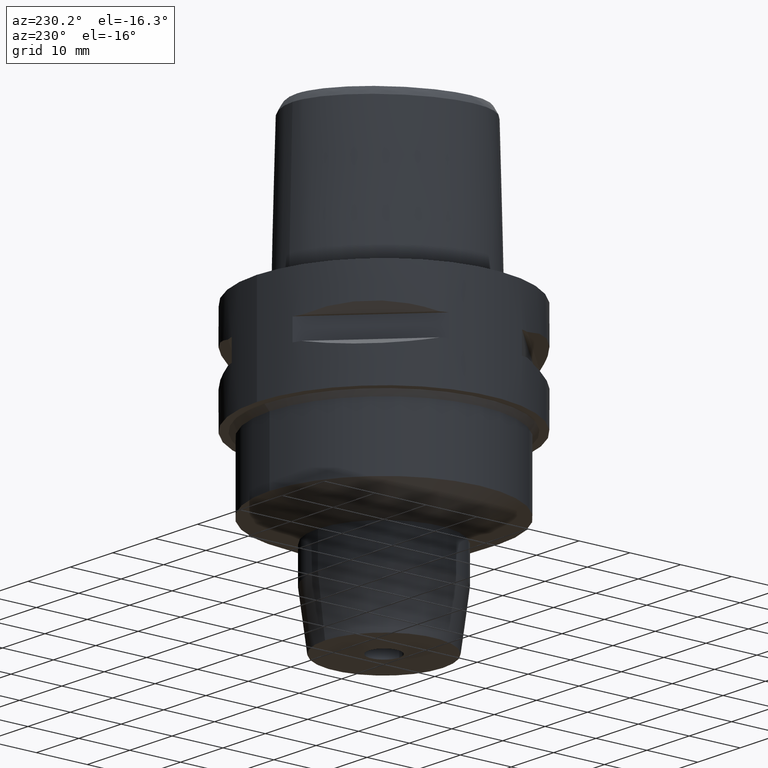
[diagram: clean part render]
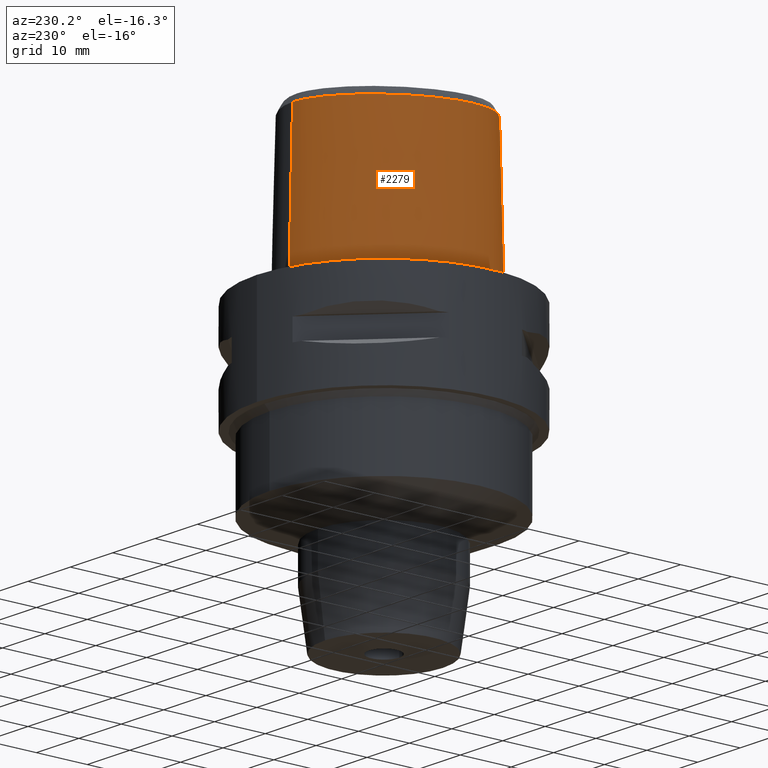
[diagram: same view with one face highlighted and labeled with its STEP entity id]
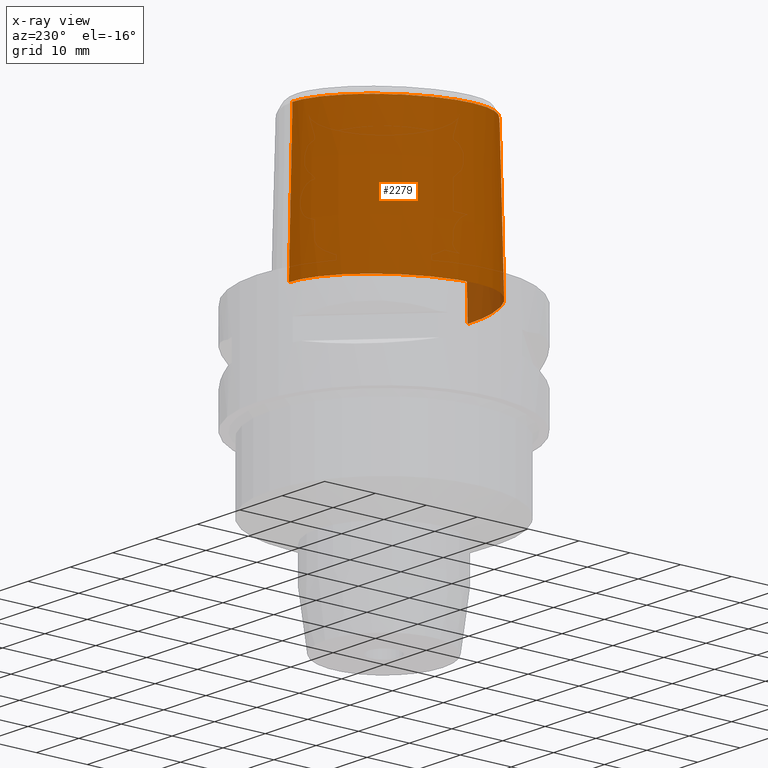
[diagram: x-ray of the same camera — body ghosted, the highlighted face saturated]
A machine part, auxiliary view. The second image highlights one B-rep face of the part: STEP entity #2279.
The next image is the same camera in x-ray: the body ghosted, the highlighted face saturated — about 3% of this face is hidden behind the body in this view.
In plain terms, the highlighted face is a freeform B-spline surface patch.
Its self-contained STEP definition (entity closure, byte-faithful):
#195=CARTESIAN_POINT('',(-3.168920966623E0,-1.555911077539E1,2.852071192347E1));
#196=CARTESIAN_POINT('',(-3.837736182049E0,-1.548115786437E1,2.852068246566E1));
#197=CARTESIAN_POINT('',(-5.103782119425E0,-1.528209457027E1,2.852072510672E1));
#198=CARTESIAN_POINT('',(-6.760079202981E0,-1.489624739786E1,2.852071503998E1));
#199=CARTESIAN_POINT('',(-8.188437593360E0,-1.445768856473E1,2.852072783918E1));
#200=CARTESIAN_POINT('',(-9.462766666758E0,-1.397001735599E1,2.852070892690E1));
#201=CARTESIAN_POINT('',(-1.062951577327E1,-1.342631881633E1,2.852072283825E1));
#202=CARTESIAN_POINT('',(-1.170079661428E1,-1.282576930629E1,2.852071572594E1));
#203=CARTESIAN_POINT('',(-1.269044503179E1,-1.215933184955E1,2.852072036219E1));
#204=CARTESIAN_POINT('',(-1.356730027027E1,-1.144675639671E1,2.852072196700E1));
#205=CARTESIAN_POINT('',(-1.430922534506E1,-1.071867031655E1,2.852072393245E1));
#206=CARTESIAN_POINT('',(-1.493021945778E1,-9.980979596831E0,2.852069071567E1));
#207=CARTESIAN_POINT('',(-1.544743411559E1,-9.230092316297E0,2.852073173178E1));
#208=CARTESIAN_POINT('',(-1.587960461388E1,-8.446092640123E0,2.852072589593E1));
#209=CARTESIAN_POINT('',(-1.624668414723E1,-7.591406008451E0,2.852070996467E1));
#210=CARTESIAN_POINT('',(-1.654869315163E1,-6.647097524912E0,2.852071614703E1));
#211=CARTESIAN_POINT('',(-1.677796582715E1,-5.598622855311E0,2.852072582419E1));
#212=CARTESIAN_POINT('',(-1.692009512570E1,-4.444930026696E0,2.852071637324E1));
#213=CARTESIAN_POINT('',(-1.696313142354E1,-3.240112035959E0,2.852071470673E1));
#214=CARTESIAN_POINT('',(-1.690959853139E1,-1.991932894290E0,2.852072358921E1));
#215=CARTESIAN_POINT('',(-1.675743213075E1,-6.857481610584E-1,
2.852071384538E1));
#216=CARTESIAN_POINT('',(-1.649934258815E1,6.933089922967E-1,2.852072007591E1));
#217=CARTESIAN_POINT('',(-1.610858108721E1,2.209818849673E0,2.852072106401E1));
#218=CARTESIAN_POINT('',(-1.553337405452E1,3.928304583437E0,2.852070352667E1));
#219=CARTESIAN_POINT('',(-1.475029640947E1,5.784966994132E0,2.852072851764E1));
#220=CARTESIAN_POINT('',(-1.380351711318E1,7.623864666244E0,2.852068632665E1));
#221=CARTESIAN_POINT('',(-1.272177317847E1,9.387990291287E0,2.852072776472E1));
#222=CARTESIAN_POINT('',(-1.152439125667E1,1.104470359628E1,2.852071845997E1));
#223=CARTESIAN_POINT('',(-1.030947821446E1,1.247968278288E1,2.852070922930E1));
#224=CARTESIAN_POINT('',(-9.172345249801E0,1.364102940937E1,2.852071999735E1));
#225=CARTESIAN_POINT('',(-8.100559611741E0,1.459752362950E1,2.852071928113E1));
#226=CARTESIAN_POINT('',(-7.043550397989E0,1.541887157743E1,2.852072706536E1));
#227=CARTESIAN_POINT('',(-5.983239612586E0,1.612645039321E1,2.852071564398E1));
#228=CARTESIAN_POINT('',(-4.916156617128E0,1.672484094873E1,2.852072336274E1));
#229=CARTESIAN_POINT('',(-3.851561446278E0,1.720918916855E1,2.852071685543E1));
#230=CARTESIAN_POINT('',(-2.813932785451E0,1.757164956736E1,2.852071557048E1));
#231=CARTESIAN_POINT('',(-1.830419456418E0,1.781466922340E1,2.852076862494E1));
#232=CARTESIAN_POINT('',(-8.905463166457E-1,1.795292144106E1,2.852059221516E1));
#233=CARTESIAN_POINT('',(-2.983358066173E-1,1.798202997910E1,2.852071728568E1));
#234=CARTESIAN_POINT('',(-2.688765535033E-11,1.798202997910E1,
2.852071728569E1));
#246=CARTESIAN_POINT('',(-3.168920966623E0,-1.555911077539E1,2.852071192347E1));
#247=CARTESIAN_POINT('',(-3.176474039100E0,-1.556891666509E1,2.809611645937E1));
#248=CARTESIAN_POINT('',(-3.191280249308E0,-1.558832444513E1,2.724696144168E1));
#249=CARTESIAN_POINT('',(-3.213330813519E0,-1.561778410051E1,2.597339362925E1));
#250=CARTESIAN_POINT('',(-3.227943724850E0,-1.563768160294E1,2.512445079602E1));
#251=CARTESIAN_POINT('',(-3.235096612069E0,-1.564751802487E1,2.47E1));
#256=DIRECTION('',(-2.653059682087E-8,-2.499217453618E-2,-9.996876468237E-1));
#257=VECTOR('',#256,7.652390309446E0);
#258=CARTESIAN_POINT('',(2.030224835323E-7,-1.583752876601E1,2.470000006103E1));
#259=LINE('',#258,#257);
#263=CARTESIAN_POINT('',(0.E0,-1.602877864024E1,1.705E1));
#264=CARTESIAN_POINT('',(-2.449947590917E-1,-1.602877864024E1,1.705E1));
#265=CARTESIAN_POINT('',(-7.358589391931E-1,-1.602369241420E1,
1.699053413817E1));
#266=CARTESIAN_POINT('',(-1.431055346078E0,-1.600283029709E1,1.672770151855E1));
#267=CARTESIAN_POINT('',(-2.046698420691E0,-1.597430569985E1,1.630127424943E1));
#268=CARTESIAN_POINT('',(-2.532913578577E0,-1.594718717091E1,1.575109596076E1));
#269=CARTESIAN_POINT('',(-2.879154915642E0,-1.592917788453E1,1.509441226071E1));
#270=CARTESIAN_POINT('',(-3.057457674112E0,-1.592781106275E1,1.437055202188E1));
#271=CARTESIAN_POINT('',(-3.057330483551E0,-1.594642477589E1,1.363131069990E1));
#272=CARTESIAN_POINT('',(-2.881551886605E0,-1.598375388739E1,1.291292000981E1));
#273=CARTESIAN_POINT('',(-2.537145558239E0,-1.603462397441E1,1.225386811493E1));
#274=CARTESIAN_POINT('',(-2.044451259378E0,-1.608992518110E1,1.169630629857E1));
#275=CARTESIAN_POINT('',(-1.430475257750E0,-1.613939692755E1,1.127227524579E1));
#276=CARTESIAN_POINT('',(-7.352565483835E-1,-1.617327041711E1,
1.100926497852E1));
#277=CARTESIAN_POINT('',(-2.448192252611E-1,-1.618126839359E1,1.095E1));
#278=CARTESIAN_POINT('',(0.E0,-1.618126839359E1,1.095E1));
#283=DIRECTION('',(0.E0,-2.499051295402E-2,-9.996876883619E-1));
#284=VECTOR('',#283,1.095342088082E1);
#285=CARTESIAN_POINT('',(0.E0,-1.618126839359E1,1.095E1));
#286=LINE('',#285,#284);
#350=CARTESIAN_POINT('',(1.063350160321E-10,1.869499999997E1,
1.702712045433E-13));
#351=CARTESIAN_POINT('',(-3.116910717946E-1,1.869499999997E1,
1.702712045433E-13));
#352=CARTESIAN_POINT('',(-9.476467512705E-1,1.866451881344E1,
-7.902314104002E-14));
#353=CARTESIAN_POINT('',(-1.935976791846E0,1.852099342545E1,
2.117418682504E-14));
#354=CARTESIAN_POINT('',(-2.968712838402E0,1.826984038497E1,0.E0));
#355=CARTESIAN_POINT('',(-4.050379387861E0,1.789820404388E1,0.E0));
#356=CARTESIAN_POINT('',(-5.185240336425E0,1.739024436282E1,0.E0));
#357=CARTESIAN_POINT('',(-6.374330198489E0,1.672788214023E1,0.E0));
#358=CARTESIAN_POINT('',(-7.614039598423E0,1.589247160888E1,0.E0));
#359=CARTESIAN_POINT('',(-8.894410011235E0,1.486718678707E1,0.E0));
#360=CARTESIAN_POINT('',(-1.019617484567E1,1.364200336157E1,0.E0));
#361=CARTESIAN_POINT('',(-1.149129753459E1,1.221741145577E1,0.E0));
#362=CARTESIAN_POINT('',(-1.274216774103E1,1.061073583342E1,0.E0));
#363=CARTESIAN_POINT('',(-1.390599104162E1,8.858527479818E0,0.E0));
#364=CARTESIAN_POINT('',(-1.494335476583E1,7.010762421335E0,0.E0));
#365=CARTESIAN_POINT('',(-1.582650081314E1,5.118914211029E0,0.E0));
#366=CARTESIAN_POINT('',(-1.653478652420E1,3.244122764273E0,0.E0));
#367=CARTESIAN_POINT('',(-1.706324856531E1,1.436867138574E0,0.E0));
#368=CARTESIAN_POINT('',(-1.741926282007E1,-2.667705314036E-1,0.E0));
#369=CARTESIAN_POINT('',(-1.761845962397E1,-1.846981053611E0,0.E0));
#370=CARTESIAN_POINT('',(-1.767988887167E1,-3.295924478685E0,0.E0));
#371=CARTESIAN_POINT('',(-1.762276940337E1,-4.616236231059E0,0.E0));
#372=CARTESIAN_POINT('',(-1.746431522305E1,-5.814804362158E0,0.E0));
#373=CARTESIAN_POINT('',(-1.721844778407E1,-6.903376767553E0,0.E0));
#374=CARTESIAN_POINT('',(-1.689576378439E1,-7.892529863846E0,0.E0));
#375=CARTESIAN_POINT('',(-1.650475676181E1,-8.792023266059E0,0.E0));
#376=CARTESIAN_POINT('',(-1.604248132324E1,-9.624720114324E0,0.E0));
#377=CARTESIAN_POINT('',(-1.549240494377E1,-1.042058101062E1,0.E0));
#378=CARTESIAN_POINT('',(-1.483700391255E1,-1.119895548827E1,0.E0));
#379=CARTESIAN_POINT('',(-1.406062408184E1,-1.196254156855E1,0.E0));
#380=CARTESIAN_POINT('',(-1.315092501812E1,-1.270649370441E1,0.E0));
#381=CARTESIAN_POINT('',(-1.209083980797E1,-1.342624920654E1,0.E0));
#382=CARTESIAN_POINT('',(-1.086461460825E1,-1.411209363958E1,0.E0));
#383=CARTESIAN_POINT('',(-9.459102000633E0,-1.475001163526E1,0.E0));
#384=CARTESIAN_POINT('',(-7.867777795801E0,-1.532128149902E1,0.E0));
#385=CARTESIAN_POINT('',(-6.095328942976E0,-1.580311558252E1,0.E0));
#386=CARTESIAN_POINT('',(-4.164108042197E0,-1.617108560899E1,
2.132605558514E-14));
#387=CARTESIAN_POINT('',(-2.108877025577E0,-1.640239194094E1,
-7.958992296880E-14));
#388=CARTESIAN_POINT('',(-7.106697475805E-1,-1.6455E1,1.714924498704E-13));
#389=CARTESIAN_POINT('',(-1.601917663902E-14,-1.6455E1,1.714924498704E-13));
#1010=DIRECTION('',(4.669625348409E-12,2.499051285762E-2,-9.996876883643E-1));
#1011=VECTOR('',#1010,2.852962742029E1);
#1012=CARTESIAN_POINT('',(-2.688765535033E-11,1.798202997910E1,
2.852071728569E1));
#1013=LINE('',#1012,#1011);
#1027=CARTESIAN_POINT('',(2.030224835323E-7,-1.583752876601E1,
2.470000006103E1));
#1028=CARTESIAN_POINT('',(-3.604657533404E-1,-1.583752876587E1,
2.470000006103E1));
#1029=CARTESIAN_POINT('',(-1.080736565087E0,-1.582371258234E1,
2.469999997152E1));
#1030=CARTESIAN_POINT('',(-2.160152508818E0,-1.576019554973E1,
2.470000000814E1));
#1031=CARTESIAN_POINT('',(-2.877122210813E0,-1.568999562894E1,2.47E1));
#1032=CARTESIAN_POINT('',(-3.235096612069E0,-1.564751802487E1,2.47E1));
#1508=CARTESIAN_POINT('',(-3.235121119989E0,-1.564755630482E1,2.47E1));
#1509=VERTEX_POINT('',#1508);
#1510=VERTEX_POINT('',#246);
#1511=CARTESIAN_POINT('',(-2.688765535033E-11,1.798202997910E1,
2.852071728569E1));
#1512=VERTEX_POINT('',#1511);
#1513=VERTEX_POINT('',#350);
#1514=VERTEX_POINT('',#389);
#1515=VERTEX_POINT('',#1027);
#1516=CARTESIAN_POINT('',(0.E0,-1.602877864024E1,1.705E1));
#1517=VERTEX_POINT('',#1516);
#1518=VERTEX_POINT('',#278);
#2166=CARTESIAN_POINT('',(5.756361492133E-1,1.869183960076E1,
-5.704147237431E-1));
#2167=CARTESIAN_POINT('',(5.606135741656E-1,1.844514040335E1,9.316773821138E0));
#2168=CARTESIAN_POINT('',(5.455909991178E-1,1.819844120595E1,1.920396236602E1));
#2169=CARTESIAN_POINT('',(5.305684240700E-1,1.795174200855E1,2.909115091090E1));
#2170=CARTESIAN_POINT('',(3.838142946829E-1,1.870350312580E1,
-5.704147237431E-1));
#2171=CARTESIAN_POINT('',(3.738602552483E-1,1.845648975075E1,9.316773821138E0));
#2172=CARTESIAN_POINT('',(3.639062158137E-1,1.820947637570E1,1.920396236602E1));
#2173=CARTESIAN_POINT('',(3.539521763791E-1,1.796246300065E1,2.909115091090E1));
#2174=CARTESIAN_POINT('',(-4.893119563830E-1,1.872969240849E1,
-5.704147237431E-1));
#2175=CARTESIAN_POINT('',(-4.764648002865E-1,1.848199780776E1,
9.316773821138E0));
#2176=CARTESIAN_POINT('',(-4.636176441900E-1,1.823430320704E1,
1.920396236602E1));
#2177=CARTESIAN_POINT('',(-4.507704880934E-1,1.798660860632E1,
2.909115091090E1));
#2178=CARTESIAN_POINT('',(-2.043508293195E0,1.856419797051E1,
-5.704147237431E-1));
#2179=CARTESIAN_POINT('',(-1.992618744045E0,1.832080814825E1,9.316773821138E0));
#2180=CARTESIAN_POINT('',(-1.941729194895E0,1.807741832600E1,1.920396236602E1));
#2181=CARTESIAN_POINT('',(-1.890839645745E0,1.783402850374E1,2.909115091090E1));
#2182=CARTESIAN_POINT('',(-4.735056264919E0,1.774784407992E1,
-5.704147237431E-1));
#2183=CARTESIAN_POINT('',(-4.628819257802E0,1.752182794456E1,9.316773821138E0));
#2184=CARTESIAN_POINT('',(-4.522582250685E0,1.729581180919E1,1.920396236602E1));
#2185=CARTESIAN_POINT('',(-4.416345243567E0,1.706979567382E1,2.909115091090E1));
#2186=CARTESIAN_POINT('',(-7.976721802034E0,1.584201698662E1,
-5.704147237431E-1));
#2187=CARTESIAN_POINT('',(-7.822764746678E0,1.564591005182E1,9.316773821138E0));
#2188=CARTESIAN_POINT('',(-7.668807691323E0,1.544980311702E1,1.920396236602E1));
#2189=CARTESIAN_POINT('',(-7.514850635967E0,1.525369618222E1,2.909115091090E1));
#2190=CARTESIAN_POINT('',(-1.147659488555E1,1.246143684892E1,
-5.704147237431E-1));
#2191=CARTESIAN_POINT('',(-1.128662492665E1,1.230111480099E1,9.316773821138E0));
#2192=CARTESIAN_POINT('',(-1.109665496774E1,1.214079275306E1,1.920396236602E1));
#2193=CARTESIAN_POINT('',(-1.090668500883E1,1.198047070513E1,2.909115091090E1));
#2194=CARTESIAN_POINT('',(-1.439249255278E1,8.309508949034E0,
-5.704147237431E-1));
#2195=CARTESIAN_POINT('',(-1.417736238409E1,8.185312165763E0,9.316773821138E0));
#2196=CARTESIAN_POINT('',(-1.396223221540E1,8.061115382493E0,1.920396236602E1));
#2197=CARTESIAN_POINT('',(-1.374710204670E1,7.936918599222E0,2.909115091090E1));
#2198=CARTESIAN_POINT('',(-1.653021708635E1,3.708305584709E0,
-5.704147237431E-1));
#2199=CARTESIAN_POINT('',(-1.629641055150E1,3.623925449749E0,9.316773821138E0));
#2200=CARTESIAN_POINT('',(-1.606260401665E1,3.539545314789E0,1.920396236602E1));
#2201=CARTESIAN_POINT('',(-1.582879748181E1,3.455165179830E0,2.909115091090E1));
#2202=CARTESIAN_POINT('',(-1.751166498609E1,-2.260900527550E-1,
-5.704147237431E-1));
#2203=CARTESIAN_POINT('',(-1.726695536052E1,-2.694874716676E-1,
9.316773821138E0));
#2204=CARTESIAN_POINT('',(-1.702224573494E1,-3.128848905802E-1,
1.920396236602E1));
#2205=CARTESIAN_POINT('',(-1.677753610937E1,-3.562823094928E-1,
2.909115091090E1));
#2206=CARTESIAN_POINT('',(-1.772574106078E1,-3.269125760290E0,
-5.704147237431E-1));
#2207=CARTESIAN_POINT('',(-1.747781017120E1,-3.270737581933E0,
9.316773821138E0));
#2208=CARTESIAN_POINT('',(-1.722987928161E1,-3.272349403576E0,
1.920396236602E1));
#2209=CARTESIAN_POINT('',(-1.698194839203E1,-3.273961225218E0,
2.909115091090E1));
#2210=CARTESIAN_POINT('',(-1.757791639783E1,-5.458025466E0,-5.704147237431E-1));
#2211=CARTESIAN_POINT('',(-1.733218227724E1,-5.422849680331E0,
9.316773821138E0));
#2212=CARTESIAN_POINT('',(-1.708644815666E1,-5.387673894661E0,
1.920396236602E1));
#2213=CARTESIAN_POINT('',(-1.684071403607E1,-5.352498108992E0,
2.909115091090E1));
#2214=CARTESIAN_POINT('',(-1.717866842992E1,-7.169980044794E0,
-5.704147237431E-1));
#2215=CARTESIAN_POINT('',(-1.694089128659E1,-7.099401455865E0,
9.316773821138E0));
#2216=CARTESIAN_POINT('',(-1.670311414327E1,-7.028822866936E0,
1.920396236602E1));
#2217=CARTESIAN_POINT('',(-1.646533699994E1,-6.958244278007E0,
2.909115091090E1));
#2218=CARTESIAN_POINT('',(-1.668217932182E1,-8.451606616991E0,
-5.704147237431E-1));
#2219=CARTESIAN_POINT('',(-1.645596371437E1,-8.350972130823E0,
9.316773821138E0));
#2220=CARTESIAN_POINT('',(-1.622974810692E1,-8.250337644655E0,
1.920396236602E1));
#2221=CARTESIAN_POINT('',(-1.600353249946E1,-8.149703158487E0,
2.909115091090E1));
#2222=CARTESIAN_POINT('',(-1.621839714849E1,-9.363695959521E0,
-5.704147237431E-1));
#2223=CARTESIAN_POINT('',(-1.600394171513E1,-9.239880056980E0,
9.316773821138E0));
#2224=CARTESIAN_POINT('',(-1.578948628176E1,-9.116064154440E0,
1.920396236602E1));
#2225=CARTESIAN_POINT('',(-1.557503084840E1,-8.992248251899E0,
2.909115091090E1));
#2226=CARTESIAN_POINT('',(-1.566039569415E1,-1.022138777469E1,
-5.704147237431E-1));
#2227=CARTESIAN_POINT('',(-1.546013586651E1,-1.007579655504E1,
9.316773821138E0));
#2228=CARTESIAN_POINT('',(-1.525987603888E1,-9.930205335400E0,
1.920396236602E1));
#2229=CARTESIAN_POINT('',(-1.505961621124E1,-9.784614115756E0,
2.909115091090E1));
#2230=CARTESIAN_POINT('',(-1.479871907762E1,-1.129217324108E1,
-5.704147237431E-1));
#2231=CARTESIAN_POINT('',(-1.461870766814E1,-1.112154148936E1,
9.316773821138E0));
#2232=CARTESIAN_POINT('',(-1.443869625866E1,-1.095090973765E1,
1.920396236602E1));
#2233=CARTESIAN_POINT('',(-1.425868484917E1,-1.078027798593E1,
2.909115091090E1));
#2234=CARTESIAN_POINT('',(-1.351574691311E1,-1.249390941333E1,
-5.704147237431E-1));
#2235=CARTESIAN_POINT('',(-1.336241662239E1,-1.229868531145E1,
9.316773821138E0));
#2236=CARTESIAN_POINT('',(-1.320908633166E1,-1.210346120956E1,
1.920396236602E1));
#2237=CARTESIAN_POINT('',(-1.305575604094E1,-1.190823710767E1,
2.909115091090E1));
#2238=CARTESIAN_POINT('',(-1.169401646454E1,-1.371637917861E1,
-5.704147237431E-1));
#2239=CARTESIAN_POINT('',(-1.157144728694E1,-1.350085883271E1,
9.316773821138E0));
#2240=CARTESIAN_POINT('',(-1.144887810933E1,-1.328533848680E1,
1.920396236602E1));
#2241=CARTESIAN_POINT('',(-1.132630893172E1,-1.306981814089E1,
2.909115091090E1));
#2242=CARTESIAN_POINT('',(-8.951632341159E0,-1.505250171833E1,
-5.704147237431E-1));
#2243=CARTESIAN_POINT('',(-8.866858734934E0,-1.481887818402E1,
9.316773821138E0));
#2244=CARTESIAN_POINT('',(-8.782085128709E0,-1.458525464972E1,
1.920396236602E1));
#2245=CARTESIAN_POINT('',(-8.697311522484E0,-1.435163111541E1,
2.909115091090E1));
#2246=CARTESIAN_POINT('',(-5.053620743978E0,-1.616974068548E1,
-5.704147237431E-1));
#2247=CARTESIAN_POINT('',(-5.009809419613E0,-1.592506880382E1,
9.316773821138E0));
#2248=CARTESIAN_POINT('',(-4.965998095247E0,-1.568039692217E1,
1.920396236602E1));
#2249=CARTESIAN_POINT('',(-4.922186770881E0,-1.543572504052E1,
2.909115091090E1));
#2250=CARTESIAN_POINT('',(-1.321318947095E0,-1.650155084682E1,
-5.704147237431E-1));
#2251=CARTESIAN_POINT('',(-1.309813751441E0,-1.625411915998E1,
9.316773821138E0));
#2252=CARTESIAN_POINT('',(-1.298308555787E0,-1.600668747314E1,
1.920396236602E1));
#2253=CARTESIAN_POINT('',(-1.286803360133E0,-1.575925578631E1,
2.909115091090E1));
#2254=CARTESIAN_POINT('',(7.264497205642E-1,-1.646229666061E1,
-5.704147237431E-1));
#2255=CARTESIAN_POINT('',(7.201291703197E-1,-1.621519146741E1,
9.316773821138E0));
#2256=CARTESIAN_POINT('',(7.138086200751E-1,-1.596808627421E1,
1.920396236602E1));
#2257=CARTESIAN_POINT('',(7.074880698306E-1,-1.572098108101E1,
2.909115091090E1));
#2258=CARTESIAN_POINT('',(1.089046662299E0,-1.644835921981E1,
-5.704147237431E-1));
#2259=CARTESIAN_POINT('',(1.079551360724E0,-1.620136642985E1,9.316773821138E0));
#2260=CARTESIAN_POINT('',(1.070056059149E0,-1.595437363988E1,1.920396236602E1));
#2261=CARTESIAN_POINT('',(1.060560757574E0,-1.570738084992E1,2.909115091090E1));
#2262=B_SPLINE_SURFACE_WITH_KNOTS('',3,3,((#2166,#2167,#2168,#2169),(#2170,
#2171,#2172,#2173),(#2174,#2175,#2176,#2177),(#2178,#2179,#2180,#2181),(#2182,
#2183,#2184,#2185),(#2186,#2187,#2188,#2189),(#2190,#2191,#2192,#2193),(#2194,
#2195,#2196,#2197),(#2198,#2199,#2200,#2201),(#2202,#2203,#2204,#2205),(#2206,
#2207,#2208,#2209),(#2210,#2211,#2212,#2213),(#2214,#2215,#2216,#2217),(#2218,
#2219,#2220,#2221),(#2222,#2223,#2224,#2225),(#2226,#2227,#2228,#2229),(#2230,
#2231,#2232,#2233),(#2234,#2235,#2236,#2237),(#2238,#2239,#2240,#2241),(#2242,
#2243,#2244,#2245),(#2246,#2247,#2248,#2249),(#2250,#2251,#2252,#2253),(#2254,
#2255,#2256,#2257),(#2258,#2259,#2260,#2261)),.UNSPECIFIED.,.F.,.F.,.F.,(4,1,1,
1,1,1,1,1,1,1,1,1,1,1,1,1,1,1,1,1,1,4),(4,4),(-1.173812893921E-2,0.E0,
4.166666666875E-2,8.333333333533E-2,1.666666666685E-1,2.500000000016E-1,
3.333333333348E-1,4.166666666680E-1,5.000000000011E-1,5.416666666677E-1,
5.833333333343E-1,6.250000000009E-1,6.458333333341E-1,6.666666666675E-1,
6.875000000007E-1,7.083333333340E-1,7.500000000006E-1,7.916666666672E-1,
8.333333333337E-1,9.166666666670E-1,1.E0,1.017968513185E0),(6.431779102367E-10,
9.999999671980E-1),.UNSPECIFIED.);
#2264=ORIENTED_EDGE('',*,*,#2263,.F.);
#2266=ORIENTED_EDGE('',*,*,#2265,.F.);
#2267=ORIENTED_EDGE('',*,*,#2159,.F.);
#2268=ORIENTED_EDGE('',*,*,#1692,.T.);
#2270=ORIENTED_EDGE('',*,*,#2269,.F.);
#2272=ORIENTED_EDGE('',*,*,#2271,.T.);
#2274=ORIENTED_EDGE('',*,*,#2273,.T.);
#2276=ORIENTED_EDGE('',*,*,#2275,.T.);
#2277=EDGE_LOOP('',(#2264,#2266,#2267,#2268,#2270,#2272,#2274,#2276));
#2278=FACE_OUTER_BOUND('',#2277,.F.);
#235=B_SPLINE_CURVE_WITH_KNOTS('',3,(#195,#196,#197,#198,#199,#200,#201,#202,
#203,#204,#205,#206,#207,#208,#209,#210,#211,#212,#213,#214,#215,#216,#217,#218,
#219,#220,#221,#222,#223,#224,#225,#226,#227,#228,#229,#230,#231,#232,#233,
#234),.UNSPECIFIED.,.F.,.F.,(4,1,1,1,1,1,1,1,1,1,1,1,1,1,1,1,1,1,1,1,1,1,1,1,1,
1,1,1,1,1,1,1,1,1,1,1,1,4),(0.E0,2.702702702703E-2,5.405405405405E-2,
8.108108108108E-2,1.081081081081E-1,1.351351351351E-1,1.621621621622E-1,
1.891891891892E-1,2.162162162162E-1,2.432432432432E-1,2.702702702703E-1,
2.972972972973E-1,3.243243243243E-1,3.513513513514E-1,3.783783783784E-1,
4.054054054054E-1,4.324324324324E-1,4.594594594595E-1,4.864864864865E-1,
5.135135135135E-1,5.405405405405E-1,5.675675675676E-1,5.945945945946E-1,
6.216216216216E-1,6.486486486486E-1,6.756756756757E-1,7.027027027027E-1,
7.297297297297E-1,7.567567567568E-1,7.837837837838E-1,8.108108108108E-1,
8.378378378378E-1,8.648648648649E-1,8.918918918919E-1,9.189189189189E-1,
9.459459459459E-1,9.729729729730E-1,1.E0),.UNSPECIFIED.);
#252=B_SPLINE_CURVE_WITH_KNOTS('',3,(#246,#247,#248,#249,#250,#251),
.UNSPECIFIED.,.F.,.F.,(4,1,1,4),(0.E0,3.333333333333E-1,6.666666666667E-1,1.E0),
.UNSPECIFIED.);
#279=B_SPLINE_CURVE_WITH_KNOTS('',3,(#263,#264,#265,#266,#267,#268,#269,#270,
#271,#272,#273,#274,#275,#276,#277,#278),.UNSPECIFIED.,.F.,.F.,(4,1,1,1,1,1,1,1,
1,1,1,1,1,4),(0.E0,7.692307692308E-2,1.538461538462E-1,2.307692307692E-1,
3.076923076923E-1,3.846153846154E-1,4.615384615385E-1,5.384615384615E-1,
6.153846153846E-1,6.923076923077E-1,7.692307692308E-1,8.461538461538E-1,
9.230769230769E-1,1.E0),.UNSPECIFIED.);
#390=B_SPLINE_CURVE_WITH_KNOTS('',3,(#350,#351,#352,#353,#354,#355,#356,#357,
#358,#359,#360,#361,#362,#363,#364,#365,#366,#367,#368,#369,#370,#371,#372,#373,
#374,#375,#376,#377,#378,#379,#380,#381,#382,#383,#384,#385,#386,#387,#388,
#389),.UNSPECIFIED.,.F.,.F.,(4,1,1,1,1,1,1,1,1,1,1,1,1,1,1,1,1,1,1,1,1,1,1,1,1,
1,1,1,1,1,1,1,1,1,1,1,1,4),(0.E0,2.702702702703E-2,5.405405405405E-2,
8.108108108108E-2,1.081081081081E-1,1.351351351351E-1,1.621621621622E-1,
1.891891891892E-1,2.162162162162E-1,2.432432432432E-1,2.702702702703E-1,
2.972972972973E-1,3.243243243243E-1,3.513513513514E-1,3.783783783784E-1,
4.054054054054E-1,4.324324324324E-1,4.594594594595E-1,4.864864864865E-1,
5.135135135135E-1,5.405405405405E-1,5.675675675676E-1,5.945945945946E-1,
6.216216216216E-1,6.486486486486E-1,6.756756756757E-1,7.027027027027E-1,
7.297297297297E-1,7.567567567568E-1,7.837837837838E-1,8.108108108108E-1,
8.378378378378E-1,8.648648648649E-1,8.918918918919E-1,9.189189189189E-1,
9.459459459459E-1,9.729729729730E-1,1.E0),.UNSPECIFIED.);
#1033=B_SPLINE_CURVE_WITH_KNOTS('',3,(#1027,#1028,#1029,#1030,#1031,#1032),
.UNSPECIFIED.,.F.,.F.,(4,1,1,4),(0.E0,3.333333333333E-1,6.666666666667E-1,1.E0),
.UNSPECIFIED.);
#1692=EDGE_CURVE('',#1510,#1509,#252,.T.);
#2159=EDGE_CURVE('',#1510,#1512,#235,.T.);
#2263=EDGE_CURVE('',#1513,#1514,#390,.T.);
#2265=EDGE_CURVE('',#1512,#1513,#1013,.T.);
#2269=EDGE_CURVE('',#1515,#1509,#1033,.T.);
#2271=EDGE_CURVE('',#1515,#1517,#259,.T.);
#2273=EDGE_CURVE('',#1517,#1518,#279,.T.);
#2275=EDGE_CURVE('',#1518,#1514,#286,.T.);
#2279=ADVANCED_FACE('',(#2278),#2262,.T.);